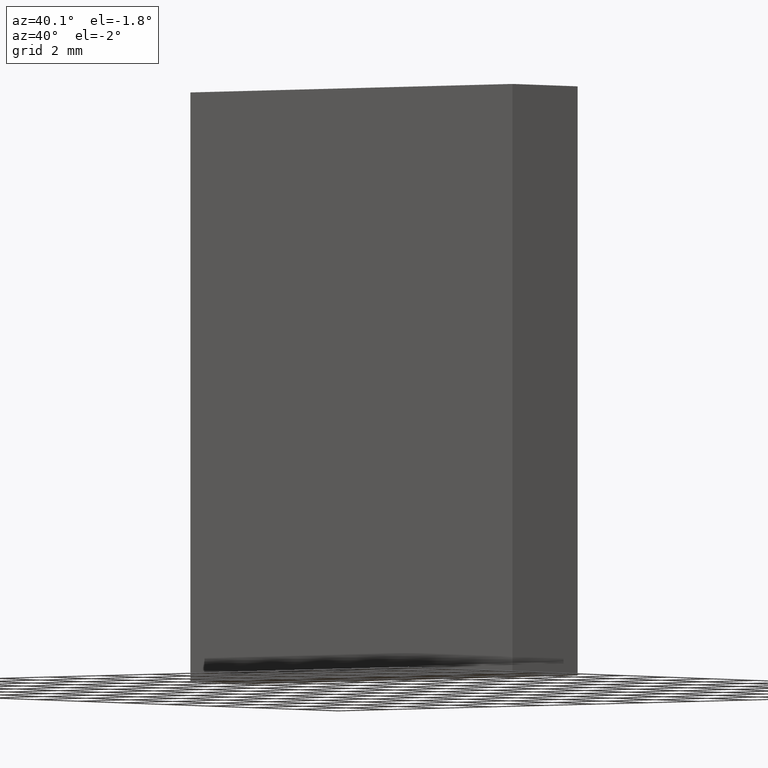
[diagram: clean part render]
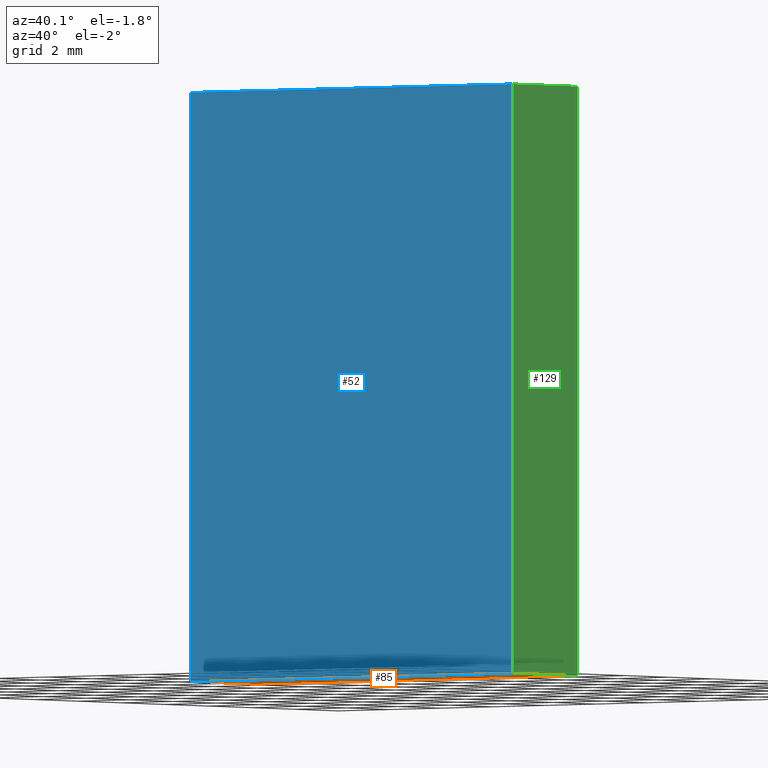
[diagram: same view with three faces highlighted in distinct colors, each labeled with its STEP entity id]
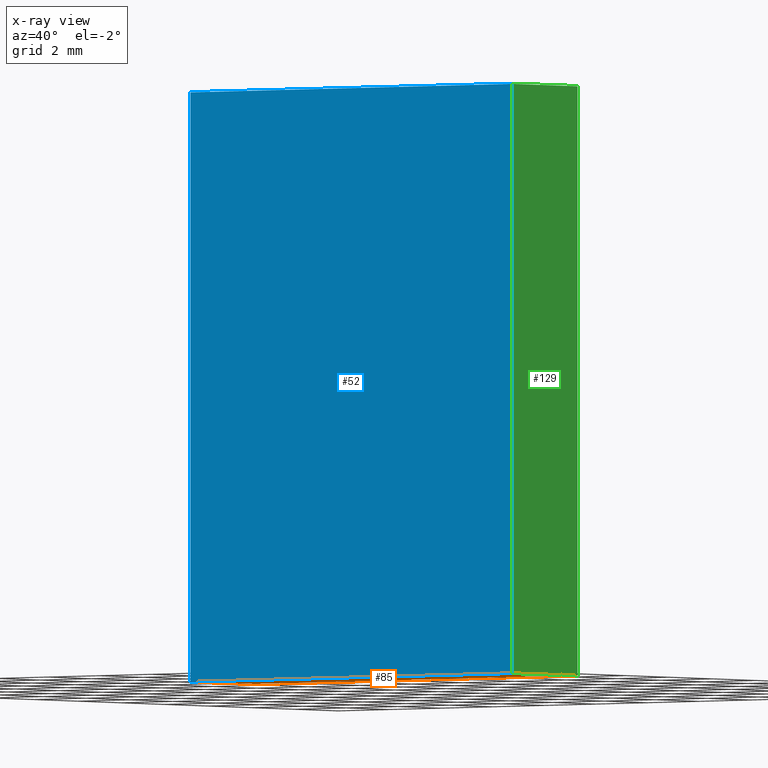
[diagram: x-ray of the same camera — body ghosted, the three highlighted faces saturated]
A machine part, auxiliary view with three faces highlighted in distinct colors.
The next image is the same camera in x-ray (body ghosted, the three faces saturated) — at least one of them is partly hidden behind the body in this view.
Their STEP definitions:

[orange] entity #85 — the highlighted planar face has unit normal (0, 0, 1).
#5 = FACE_OUTER_BOUND ( 'NONE', #81, .T. ) ;
#7 = DIRECTION ( 'NONE',  ( -0.0000000000000000000, -1.000000000000000000, -0.0000000000000000000 ) ) ;
#10 = ORIENTED_EDGE ( 'NONE', *, *, #147, .F. ) ;
#15 = CARTESIAN_POINT ( 'NONE',  ( 6.249999999999998200, 3.000000000000000000, -8.750000000000000000 ) ) ;
#21 = DIRECTION ( 'NONE',  ( 0.0000000000000000000, 0.0000000000000000000, 1.000000000000000000 ) ) ;
#22 = ORIENTED_EDGE ( 'NONE', *, *, #117, .T. ) ;
#23 = DIRECTION ( 'NONE',  ( 1.000000000000000000, 0.0000000000000000000, -0.0000000000000000000 ) ) ;
#24 = CARTESIAN_POINT ( 'NONE',  ( -6.250000000000001800, 3.000000000000000000, -8.750000000000000000 ) ) ;
#27 = LINE ( 'NONE', #154, #186 ) ;
#34 = CARTESIAN_POINT ( 'NONE',  ( -6.250000000000001800, 0.0000000000000000000, -8.750000000000000000 ) ) ;
#36 = VECTOR ( 'NONE', #118, 1000.000000000000000 ) ;
#40 = DIRECTION ( 'NONE',  ( -1.000000000000000000, -0.0000000000000000000, -0.0000000000000000000 ) ) ;
#41 = DIRECTION ( 'NONE',  ( -0.0000000000000000000, -1.000000000000000000, -0.0000000000000000000 ) ) ;
#50 = ORIENTED_EDGE ( 'NONE', *, *, #161, .T. ) ;
#55 = VERTEX_POINT ( 'NONE', #156 ) ;
#71 = VERTEX_POINT ( 'NONE', #88 ) ;
#81 = EDGE_LOOP ( 'NONE', ( #50, #95, #10, #22 ) ) ;
#85 = ADVANCED_FACE ( 'NONE', ( #5 ), #162, .F. ) ;
#88 = CARTESIAN_POINT ( 'NONE',  ( 6.249999999999998200, 0.0000000000000000000, -8.750000000000000000 ) ) ;
#91 = LINE ( 'NONE', #195, #155 ) ;
#95 = ORIENTED_EDGE ( 'NONE', *, *, #182, .F. ) ;
#99 = AXIS2_PLACEMENT_3D ( 'NONE', #24, #21, #23 ) ;
#102 = VECTOR ( 'NONE', #41, 1000.000000000000000 ) ;
#115 = CARTESIAN_POINT ( 'NONE',  ( -6.250000000000001800, 0.0000000000000000000, -8.750000000000000000 ) ) ;
#117 = EDGE_CURVE ( 'NONE', #153, #71, #127, .T. ) ;
#118 = DIRECTION ( 'NONE',  ( -1.000000000000000000, -0.0000000000000000000, -0.0000000000000000000 ) ) ;
#121 = LINE ( 'NONE', #115, #36 ) ;
#127 = LINE ( 'NONE', #15, #102 ) ;
#130 = VERTEX_POINT ( 'NONE', #34 ) ;
#135 = CARTESIAN_POINT ( 'NONE',  ( 6.249999999999998200, 3.000000000000000000, -8.750000000000000000 ) ) ;
#147 = EDGE_CURVE ( 'NONE', #153, #55, #91, .T. ) ;
#153 = VERTEX_POINT ( 'NONE', #135 ) ;
#154 = CARTESIAN_POINT ( 'NONE',  ( -6.250000000000001800, 3.000000000000000000, -8.750000000000000000 ) ) ;
#155 = VECTOR ( 'NONE', #40, 1000.000000000000000 ) ;
#156 = CARTESIAN_POINT ( 'NONE',  ( -6.250000000000001800, 3.000000000000000000, -8.750000000000000000 ) ) ;
#161 = EDGE_CURVE ( 'NONE', #71, #130, #121, .T. ) ;
#162 = PLANE ( 'NONE',  #99 ) ;
#182 = EDGE_CURVE ( 'NONE', #55, #130, #27, .T. ) ;
#186 = VECTOR ( 'NONE', #7, 1000.000000000000000 ) ;
#195 = CARTESIAN_POINT ( 'NONE',  ( -6.250000000000001800, 3.000000000000000000, -8.750000000000000000 ) ) ;

[blue] entity #52 — the highlighted planar face has unit normal (0, 1, 0).
#1 = EDGE_CURVE ( 'NONE', #130, #112, #197, .T. ) ;
#8 = DIRECTION ( 'NONE',  ( 1.000000000000000000, 0.0000000000000000000, 0.0000000000000000000 ) ) ;
#25 = CARTESIAN_POINT ( 'NONE',  ( 6.249999999999998200, 0.0000000000000000000, -8.750000000000000000 ) ) ;
#29 = AXIS2_PLACEMENT_3D ( 'NONE', #137, #42, #122 ) ;
#33 = CARTESIAN_POINT ( 'NONE',  ( -6.250000000000001800, 0.0000000000000000000, -8.750000000000000000 ) ) ;
#34 = CARTESIAN_POINT ( 'NONE',  ( -6.250000000000001800, 0.0000000000000000000, -8.750000000000000000 ) ) ;
#36 = VECTOR ( 'NONE', #118, 1000.000000000000000 ) ;
#42 = DIRECTION ( 'NONE',  ( 0.0000000000000000000, 1.000000000000000000, 0.0000000000000000000 ) ) ;
#47 = PLANE ( 'NONE',  #29 ) ;
#48 = VECTOR ( 'NONE', #73, 1000.000000000000000 ) ;
#52 = ADVANCED_FACE ( 'NONE', ( #79 ), #47, .F. ) ;
#53 = DIRECTION ( 'NONE',  ( -9.912705577010325500E-017, -0.0000000000000000000, -1.000000000000000000 ) ) ;
#56 = LINE ( 'NONE', #25, #166 ) ;
#66 = ORIENTED_EDGE ( 'NONE', *, *, #87, .F. ) ;
#71 = VERTEX_POINT ( 'NONE', #88 ) ;
#73 = DIRECTION ( 'NONE',  ( 9.912705577010325500E-017, 0.0000000000000000000, 1.000000000000000000 ) ) ;
#74 = CARTESIAN_POINT ( 'NONE',  ( -6.250000000000000000, 0.0000000000000000000, 8.750000000000000000 ) ) ;
#76 = VECTOR ( 'NONE', #8, 1000.000000000000000 ) ;
#79 = FACE_OUTER_BOUND ( 'NONE', #176, .T. ) ;
#87 = EDGE_CURVE ( 'NONE', #112, #199, #165, .T. ) ;
#88 = CARTESIAN_POINT ( 'NONE',  ( 6.249999999999998200, 0.0000000000000000000, -8.750000000000000000 ) ) ;
#96 = EDGE_CURVE ( 'NONE', #199, #71, #56, .T. ) ;
#112 = VERTEX_POINT ( 'NONE', #113 ) ;
#113 = CARTESIAN_POINT ( 'NONE',  ( -6.250000000000000000, 0.0000000000000000000, 8.750000000000000000 ) ) ;
#115 = CARTESIAN_POINT ( 'NONE',  ( -6.250000000000001800, 0.0000000000000000000, -8.750000000000000000 ) ) ;
#118 = DIRECTION ( 'NONE',  ( -1.000000000000000000, -0.0000000000000000000, -0.0000000000000000000 ) ) ;
#121 = LINE ( 'NONE', #115, #36 ) ;
#122 = DIRECTION ( 'NONE',  ( 0.0000000000000000000, -0.0000000000000000000, 1.000000000000000000 ) ) ;
#130 = VERTEX_POINT ( 'NONE', #34 ) ;
#137 = CARTESIAN_POINT ( 'NONE',  ( 0.0000000000000000000, 0.0000000000000000000, 0.0000000000000000000 ) ) ;
#140 = ORIENTED_EDGE ( 'NONE', *, *, #1, .F. ) ;
#143 = ORIENTED_EDGE ( 'NONE', *, *, #96, .F. ) ;
#161 = EDGE_CURVE ( 'NONE', #71, #130, #121, .T. ) ;
#165 = LINE ( 'NONE', #74, #76 ) ;
#166 = VECTOR ( 'NONE', #53, 1000.000000000000000 ) ;
#176 = EDGE_LOOP ( 'NONE', ( #143, #66, #140, #181 ) ) ;
#181 = ORIENTED_EDGE ( 'NONE', *, *, #161, .F. ) ;
#196 = CARTESIAN_POINT ( 'NONE',  ( 6.250000000000000000, 0.0000000000000000000, 8.750000000000000000 ) ) ;
#197 = LINE ( 'NONE', #33, #48 ) ;
#199 = VERTEX_POINT ( 'NONE', #196 ) ;

[green] entity #129 — the highlighted planar face has unit normal (-1, 0, 0).
#14 = ORIENTED_EDGE ( 'NONE', *, *, #169, .T. ) ;
#15 = CARTESIAN_POINT ( 'NONE',  ( 6.249999999999998200, 3.000000000000000000, -8.750000000000000000 ) ) ;
#25 = CARTESIAN_POINT ( 'NONE',  ( 6.249999999999998200, 0.0000000000000000000, -8.750000000000000000 ) ) ;
#32 = VECTOR ( 'NONE', #125, 1000.000000000000000 ) ;
#41 = DIRECTION ( 'NONE',  ( -0.0000000000000000000, -1.000000000000000000, -0.0000000000000000000 ) ) ;
#44 = DIRECTION ( 'NONE',  ( -1.000000000000000000, 0.0000000000000000000, 9.912705577010325500E-017 ) ) ;
#51 = VERTEX_POINT ( 'NONE', #128 ) ;
#53 = DIRECTION ( 'NONE',  ( -9.912705577010325500E-017, -0.0000000000000000000, -1.000000000000000000 ) ) ;
#56 = LINE ( 'NONE', #25, #166 ) ;
#59 = PLANE ( 'NONE',  #173 ) ;
#65 = EDGE_LOOP ( 'NONE', ( #189, #167, #150, #14 ) ) ;
#71 = VERTEX_POINT ( 'NONE', #88 ) ;
#88 = CARTESIAN_POINT ( 'NONE',  ( 6.249999999999998200, 0.0000000000000000000, -8.750000000000000000 ) ) ;
#96 = EDGE_CURVE ( 'NONE', #199, #71, #56, .T. ) ;
#102 = VECTOR ( 'NONE', #41, 1000.000000000000000 ) ;
#104 = DIRECTION ( 'NONE',  ( 9.912705577010325500E-017, 0.0000000000000000000, 1.000000000000000000 ) ) ;
#117 = EDGE_CURVE ( 'NONE', #153, #71, #127, .T. ) ;
#125 = DIRECTION ( 'NONE',  ( -0.0000000000000000000, -1.000000000000000000, -0.0000000000000000000 ) ) ;
#127 = LINE ( 'NONE', #15, #102 ) ;
#128 = CARTESIAN_POINT ( 'NONE',  ( 6.250000000000000000, 3.000000000000000000, 8.750000000000000000 ) ) ;
#129 = ADVANCED_FACE ( 'NONE', ( #184 ), #59, .F. ) ;
#132 = LINE ( 'NONE', #194, #148 ) ;
#134 = EDGE_CURVE ( 'NONE', #51, #153, #132, .T. ) ;
#135 = CARTESIAN_POINT ( 'NONE',  ( 6.249999999999998200, 3.000000000000000000, -8.750000000000000000 ) ) ;
#139 = DIRECTION ( 'NONE',  ( -9.912705577010325500E-017, -0.0000000000000000000, -1.000000000000000000 ) ) ;
#148 = VECTOR ( 'NONE', #139, 1000.000000000000000 ) ;
#150 = ORIENTED_EDGE ( 'NONE', *, *, #134, .F. ) ;
#153 = VERTEX_POINT ( 'NONE', #135 ) ;
#166 = VECTOR ( 'NONE', #53, 1000.000000000000000 ) ;
#167 = ORIENTED_EDGE ( 'NONE', *, *, #117, .F. ) ;
#169 = EDGE_CURVE ( 'NONE', #51, #199, #202, .T. ) ;
#173 = AXIS2_PLACEMENT_3D ( 'NONE', #177, #44, #104 ) ;
#177 = CARTESIAN_POINT ( 'NONE',  ( 6.249999999999998200, 3.000000000000000000, -8.750000000000000000 ) ) ;
#179 = CARTESIAN_POINT ( 'NONE',  ( 6.250000000000000000, 3.000000000000000000, 8.750000000000000000 ) ) ;
#184 = FACE_OUTER_BOUND ( 'NONE', #65, .T. ) ;
#189 = ORIENTED_EDGE ( 'NONE', *, *, #96, .T. ) ;
#194 = CARTESIAN_POINT ( 'NONE',  ( 6.249999999999998200, 3.000000000000000000, -8.750000000000000000 ) ) ;
#196 = CARTESIAN_POINT ( 'NONE',  ( 6.250000000000000000, 0.0000000000000000000, 8.750000000000000000 ) ) ;
#199 = VERTEX_POINT ( 'NONE', #196 ) ;
#202 = LINE ( 'NONE', #179, #32 ) ;